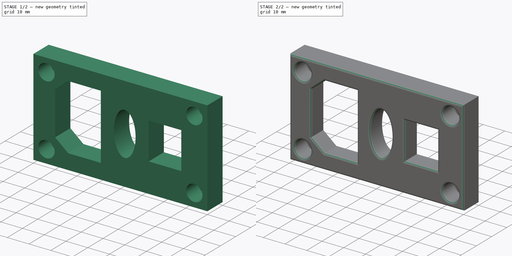
[diagram: build sequence overview — one tinted view per stage of 2, left to right]
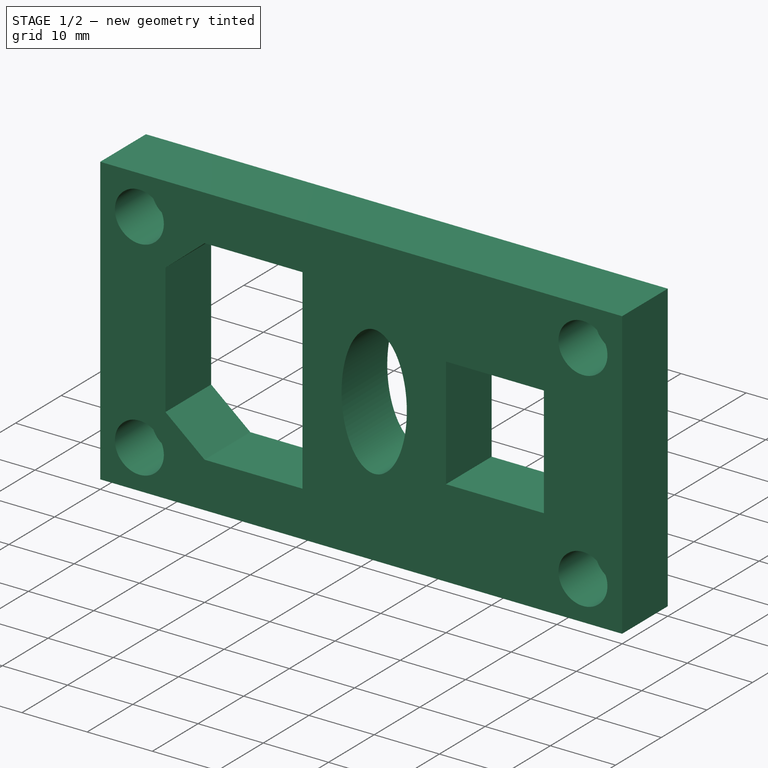
[diagram: stage 1 of 2 — iso view after this stage's code; geometry added in this stage tinted green]
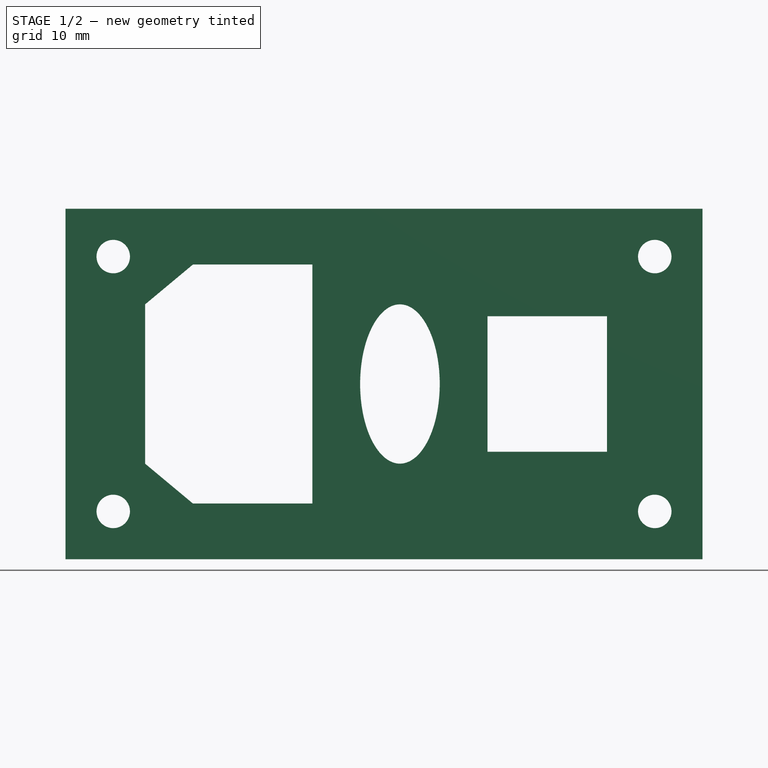
[diagram: stage 1 of 2 — front view after this stage's code; geometry added in this stage tinted green]
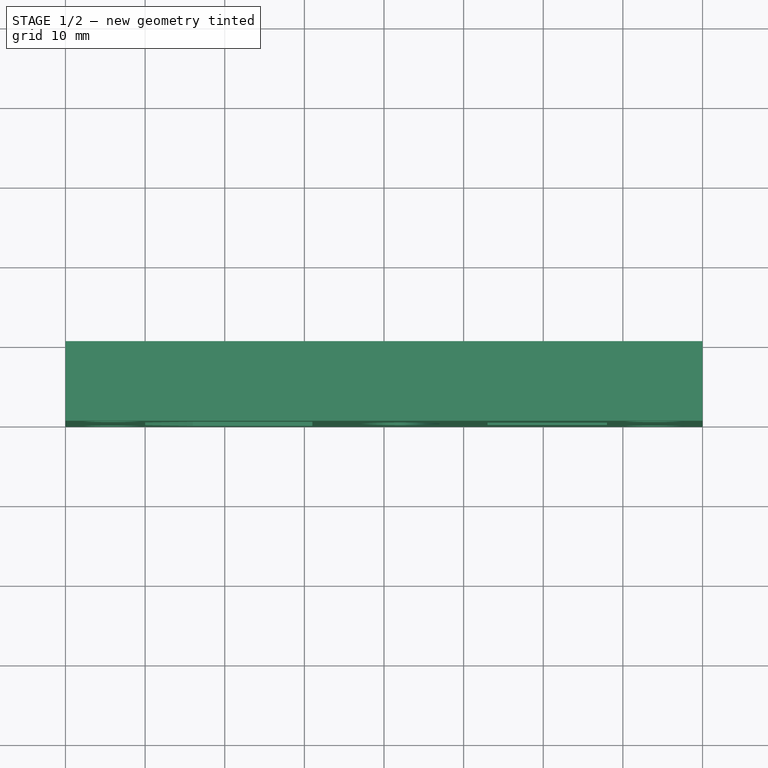
[diagram: stage 1 of 2 — top view after this stage's code; geometry added in this stage tinted green]
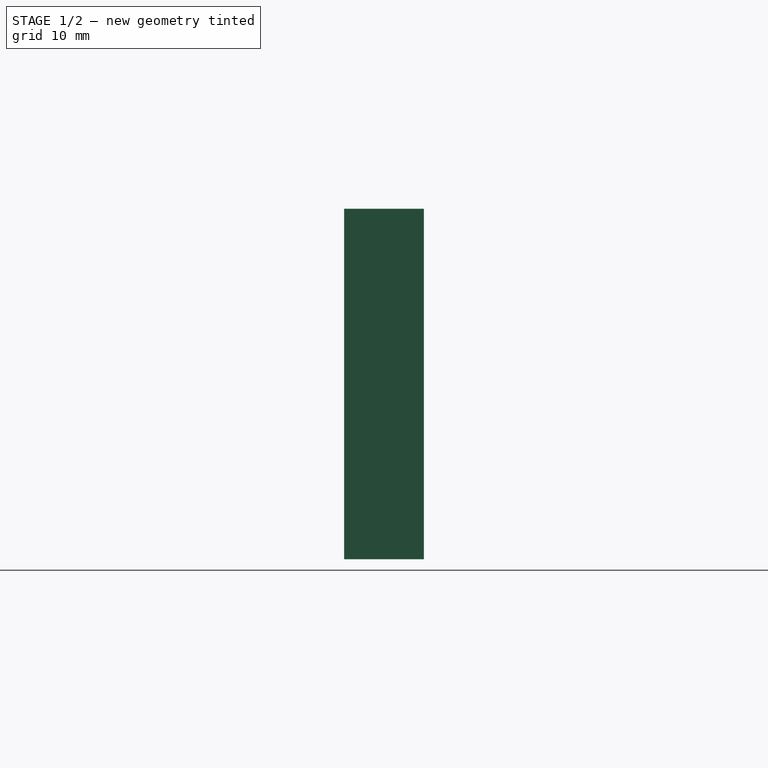
[diagram: stage 1 of 2 — right view after this stage's code; geometry added in this stage tinted green]
FCSTD DOCUMENT  (FreeCAD 2023.521R14555 (Git shallow))
Label: Back_IO
License: All rights reserved
LicenseURL: https://en.wikipedia.org/wiki/All_rights_reserved
objects: Sketcher::SketchObject×2, PartDesign::Pad×1, PartDesign::Pocket×1, PartDesign::Fillet×1, PartDesign::Chamfer×1, PartDesign::Body×1
note: 17 computed .brp shape members not serialized (recipe doc carries the construction recipe); baked Part::Feature solids carry a one-line shape summary decoded from their .brp

FEATURE [Sketcher::SketchObject] Sketch
  ArcFitTolerance = 1e-06
  AttachmentSupport = -> [XZ_Plane]
  ExternalBSplineMaxDegree = 5
  ExternalBSplineTolerance = 0.0001
  FixShape = 1
  FullyConstrained = true
  InternalTolerance = 1e-06
  InvalidShape = false
  MakeInternals = false
  MapMode = 5
  Placement = pos=(0,0,0) rot=(1,0,0;1.5708rad)
  Support = -> [XZ_Plane]
  TreeRank = 11
  ValidateShape = false
  sketch-geometry (32):
    g0: LineSegment StartX=-40 StartY=-22 StartZ=0 EndX=-40 EndY=22 EndZ=0
    g1: LineSegment StartX=-40 StartY=22 StartZ=0 EndX=40 EndY=22 EndZ=0
    g2: LineSegment StartX=40 StartY=22 StartZ=0 EndX=40 EndY=-22 EndZ=0
    g3: LineSegment StartX=40 StartY=-22 StartZ=0 EndX=-40 EndY=-22 EndZ=0
    g4: GeomPoint [constr] X=0 Y=0 Z=0
    g5: Circle CenterX=-34 CenterY=16 CenterZ=0 NormalX=0 NormalY=0 NormalZ=1 AngleXU=0 Radius=2.1
    g6: Circle CenterX=-34 CenterY=-16 CenterZ=0 NormalX=0 NormalY=0 NormalZ=1 AngleXU=0 Radius=2.1
    g7: Circle CenterX=34 CenterY=16 CenterZ=0 NormalX=0 NormalY=0 NormalZ=1 AngleXU=0 Radius=2.1
    g8: Circle CenterX=34 CenterY=-16 CenterZ=0 NormalX=0 NormalY=0 NormalZ=1 AngleXU=0 Radius=2.1
    g9: LineSegment [constr] StartX=-34 StartY=-16 StartZ=0 EndX=-34 EndY=16 EndZ=0
    g10: LineSegment [constr] StartX=-34 StartY=16 StartZ=0 EndX=34 EndY=16 EndZ=0
    g11: LineSegment [constr] StartX=34 StartY=16 StartZ=0 EndX=34 EndY=-16 EndZ=0
    g12: LineSegment [constr] StartX=34 StartY=-16 StartZ=0 EndX=-34 EndY=-16 EndZ=0
    g13: GeomPoint [constr] X=0 Y=0 Z=0
    g14: LineSegment [constr] StartX=-34 StartY=16 StartZ=0 EndX=-40 EndY=16 EndZ=0
    g15: LineSegment [constr] StartX=-34 StartY=16 StartZ=0 EndX=-34 EndY=22 EndZ=0
    g16: LineSegment StartX=-30 StartY=10 StartZ=0 EndX=-30 EndY=-10 EndZ=0
    g17: LineSegment StartX=-30 StartY=-10 StartZ=0 EndX=-24 EndY=-15 EndZ=0
    g18: LineSegment StartX=-24 StartY=-15 StartZ=0 EndX=-9 EndY=-15 EndZ=0
    g19: LineSegment StartX=-9 StartY=-15 StartZ=0 EndX=-9 EndY=15 EndZ=0
    g20: LineSegment StartX=-9 StartY=15 StartZ=0 EndX=-24 EndY=15 EndZ=0
    g21: LineSegment StartX=-24 StartY=15 StartZ=0 EndX=-30 EndY=10 EndZ=0
    g22: Ellipse CenterX=2 CenterY=0 CenterZ=0 NormalX=0 NormalY=0 NormalZ=1 MajorRadius=10 MinorRadius=5 AngleXU=1.5708
    g23: LineSegment [constr] StartX=2 StartY=10 StartZ=0 EndX=2 EndY=-10 EndZ=0
    g24: LineSegment [constr] StartX=-3 StartY=0 StartZ=0 EndX=7 EndY=0 EndZ=0
    g25: GeomPoint [constr] X=2 Y=8.66025 Z=0
    g26: GeomPoint [constr] X=2 Y=-8.66025 Z=0
    g27: LineSegment StartX=13 StartY=-8.5 StartZ=0 EndX=13 EndY=8.5 EndZ=0
    g28: LineSegment StartX=13 StartY=8.5 StartZ=0 EndX=28 EndY=8.5 EndZ=0
    g29: LineSegment StartX=28 StartY=8.5 StartZ=0 EndX=28 EndY=-8.5 EndZ=0
    g30: LineSegment StartX=28 StartY=-8.5 StartZ=0 EndX=13 EndY=-8.5 EndZ=0
    g31: GeomPoint [constr] X=20.5 Y=0 Z=0
  constraints (74):
    c: Coincident(g0,g1)
    c: Coincident(g1,g2)
    c: Coincident(g2,g3)
    c: Coincident(g3,g0)
    c: Horizontal(g1)
    c: Horizontal(g3)
    c: Vertical(g0)
    c: Vertical(g2)
    c: Symmetric(g1,g0,g4)
    c: Coincident(g4,g-1)
    c: Coincident(g9,g10)
    c: Coincident(g10,g11)
    c: Coincident(g11,g12)
    c: Coincident(g12,g9)
    c: Horizontal(g10)
    c: Horizontal(g12)
    c: Vertical(g9)
    c: Vertical(g11)
    c: Symmetric(g10,g9,g13)
    c: Coincident(g13,g4)
    c: Coincident(g10,g7)
    c: Coincident(g11,g8)
    c: Coincident(g5,g9)
    c: Coincident(g6,g9)
    c: DistanceY(g9,g9) = 32
    c: DistanceY(g0,g0) = 44
    c: Diameter(g5) = 4.2
    c: Equal(g5,g6)
    c: Equal(g6,g7)
    c: Equal(g7,g8)
    c: Coincident(g14,g5)
    c: PointOnObject(g14,g0)
    c: Horizontal(g14)
    c: Coincident(g15,g5)
    c: PointOnObject(g15,g1)
    c: Vertical(g15)
    c: Equal(g15,g14)
    c: Vertical(g16)
    c: Coincident(g16,g17)
    c: Coincident(g17,g18)
    c: Horizontal(g18)
    c: Coincident(g18,g19)
    c: Coincident(g19,g20)
    c: Coincident(g20,g21)
    c: Coincident(g21,g16)
    c: Horizontal(g20)
    c: Equal(g18,g20)
    c: Equal(g21,g17)
    c: Symmetric(g18,g19,g-1)
    c: DistanceX(g16,g18) = 21
    c: DistanceY(g19,g19) = 30
    c: DistanceX(g16,g20) = 6
    c: DistanceY(g16,g16) = 20
    c: DistanceX(g5,g16) = 4
    c: InternalAlignment(g23-g26 -> g22) x4
    c: PointOnObject(g22,g-1)
    c: DistanceX(g6,g22) = 36
    c: Vertical(g23)
    c: DistanceY(g23,g23) = 20
    c: DistanceX(g24,g24) = 10
    c: Coincident(g27,g28)
    c: Coincident(g28,g29)
    c: Coincident(g29,g30)
    c: Coincident(g30,g27)
    c: Horizontal(g28)
    c: Horizontal(g30)
    c: Vertical(g27)
    c: Vertical(g29)
    c: Symmetric(g28,g27,g31)
    c: PointOnObject(g31,g-1)
    c: DistanceX(g28,g28) = 15
    c: DistanceY(g29,g29) = 17
    c: DistanceX(g5,g28) = 62
    c: DistanceX(g10,g10) = 68
FEATURE [PartDesign::Pad] Pad
  AddSubType = 0
  AlongSketchNormal = false
  AutoTaperInnerAngle = true
  CheckUpToFaceLimits = true
  ClaimChildren = false
  Direction = (0,-1,2e-16)
  Fit = 0
  FitJoin = 0
  FixShape = 1
  InnerFit = 0
  InnerFitJoin = 0
  InvalidShape = false
  Length = 10
  Length2 = 10
  Linearize = true
  NewSolid = false
  Profile = -> Sketch
  ReferenceAxis = -> Sketch [N_Axis]
  Refine = true
  Suppress = false
  TaperInnerAngle = 0
  TaperInnerAngleRev = 0
  TreeRank = 12
  Type = 0
  ValidateShape = true
  _ProfileBasedVersion = 1
FEATURE [Sketcher::SketchObject] Sketch001
  ArcFitTolerance = 1e-06
  AttachmentSupport = -> [Pad]
  ExternalBSplineMaxDegree = 5
  ExternalBSplineTolerance = 0.0001
  ExternalGeometry = -> [Pad]
  FixShape = 1
  FullyConstrained = true
  InternalTolerance = 1e-06
  InvalidShape = false
  MakeInternals = false
  MapMode = 5
  Placement = pos=(0,-10,2.2e-15) rot=(1,0,0;1.5708rad)
  Support = -> [Pad]
  TreeRank = 13
  ValidateShape = false
  sketch-geometry (4):
    g0: Circle CenterX=-34 CenterY=16 CenterZ=0 NormalX=0 NormalY=0 NormalZ=1 AngleXU=0 Radius=3.75
    g1: Circle CenterX=-34 CenterY=-16 CenterZ=0 NormalX=0 NormalY=0 NormalZ=1 AngleXU=0 Radius=3.75
    g2: Circle CenterX=34 CenterY=-16 CenterZ=0 NormalX=0 NormalY=0 NormalZ=1 AngleXU=0 Radius=3.75
    g3: Circle CenterX=34 CenterY=16 CenterZ=0 NormalX=0 NormalY=0 NormalZ=1 AngleXU=0 Radius=3.75
  constraints (8):
    c: Coincident(g0,g-3)
    c: Coincident(g1,g-5)
    c: Coincident(g2,g-6)
    c: Coincident(g3,g-4)
    c: Equal(g2,g3)
    c: Equal(g3,g0)
    c: Equal(g0,g1)
    c: Diameter(g0) = 7.5
FEATURE [PartDesign::Pocket] Pocket
  AddSubType = 1
  AlongSketchNormal = false
  AutoTaperInnerAngle = true
  BaseFeature = -> Pad
  CheckUpToFaceLimits = true
  ClaimChildren = false
  Direction = (0,1,-2e-16)
  Fit = 0
  FitJoin = 0
  FixShape = 1
  InnerFit = 0
  InnerFitJoin = 0
  InvalidShape = false
  Length = 8
  Length2 = 10
  Linearize = true
  NewSolid = false
  Profile = -> Sketch001
  ReferenceAxis = -> Sketch001 [N_Axis]
  Refine = true
  Suppress = false
  TaperInnerAngle = 0
  TaperInnerAngleRev = 0
  TreeRank = 14
  Type = 0
  ValidateShape = true
  _ProfileBasedVersion = 1
  _Version = 1
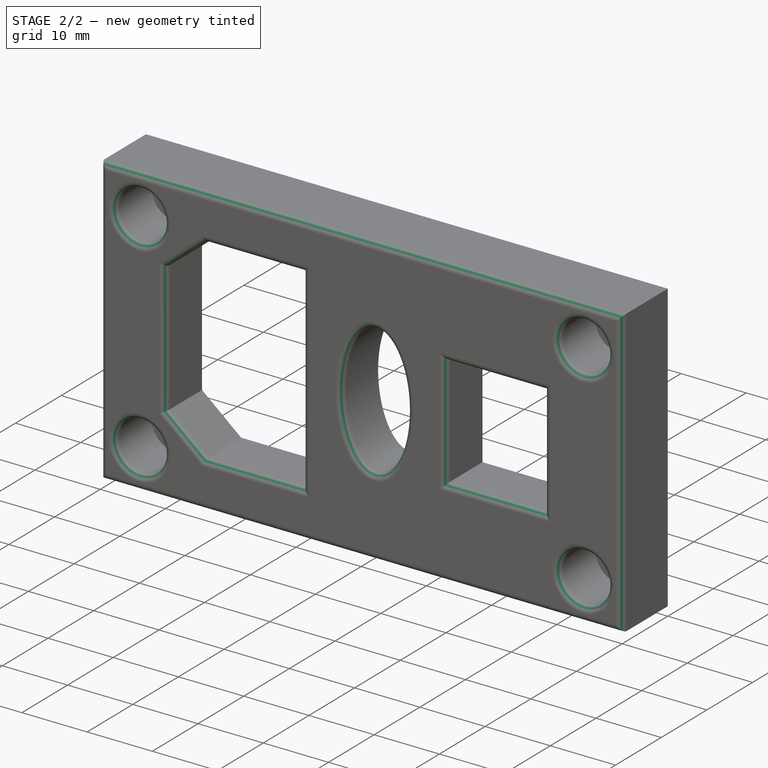
[diagram: stage 2 of 2 — iso view after this stage's code; geometry added in this stage tinted green]
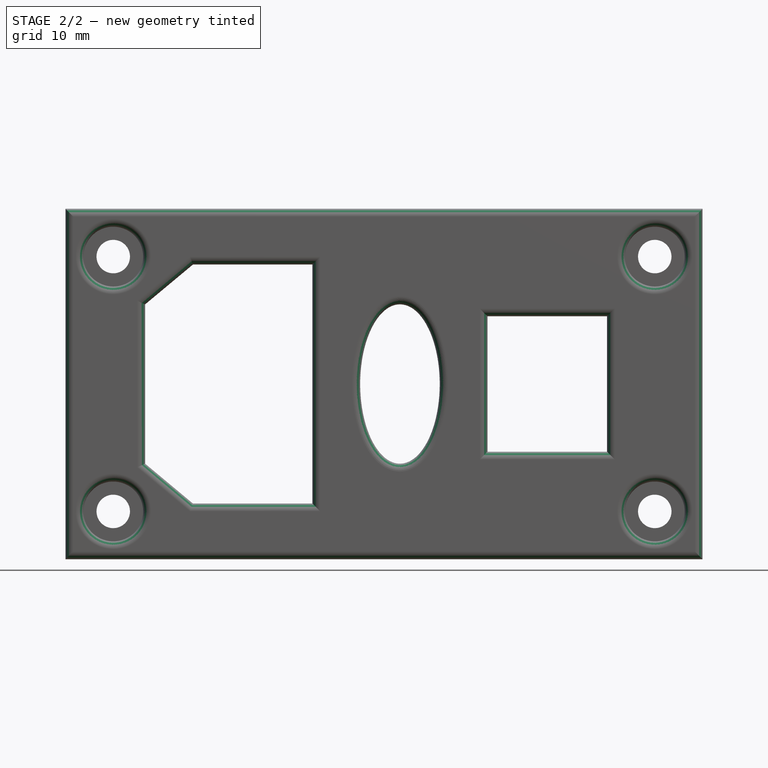
[diagram: stage 2 of 2 — front view after this stage's code; geometry added in this stage tinted green]
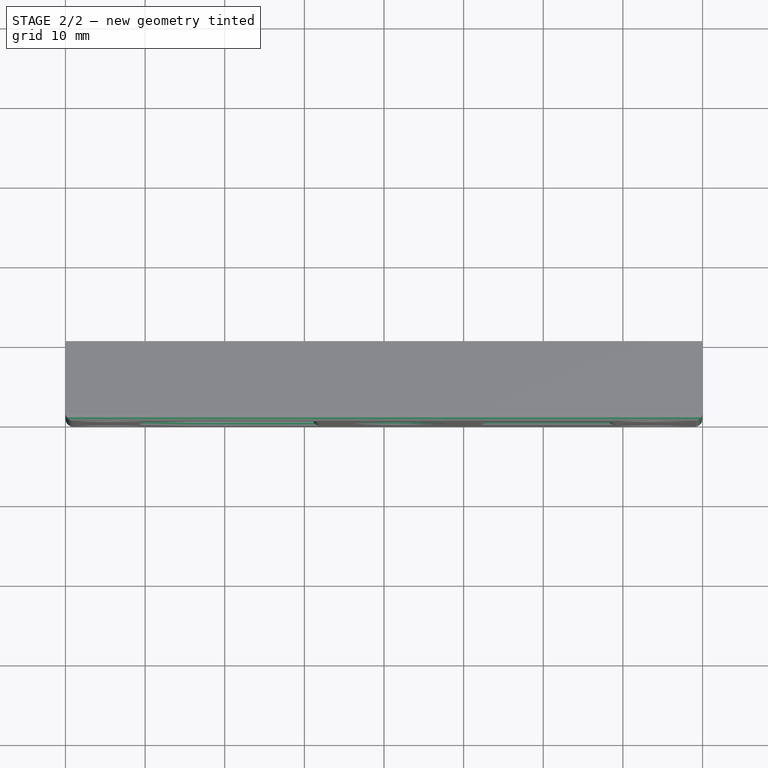
[diagram: stage 2 of 2 — top view after this stage's code; geometry added in this stage tinted green]
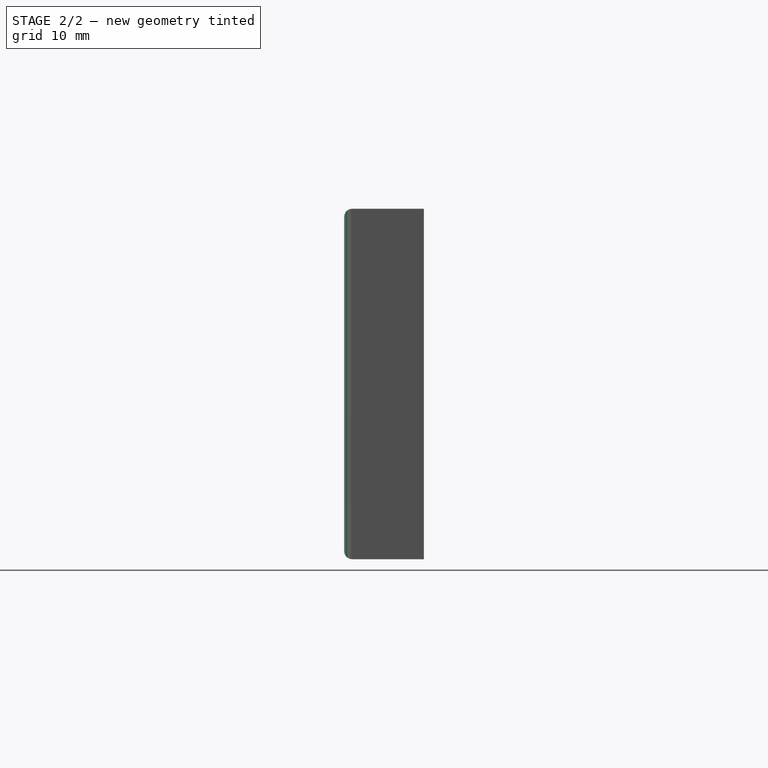
[diagram: stage 2 of 2 — right view after this stage's code; geometry added in this stage tinted green]
FEATURE [PartDesign::Fillet] Fillet
  AddSubType = 0
  Base = -> Pocket [Face5]
  BaseFeature = -> Pocket
  FixShape = 1
  InvalidShape = false
  NewSolid = false
  Radius = 1
  Refine = true
  SupportTransform = false
  Suppress = false
  TreeRank = 15
  UseAllEdges = false
  ValidateShape = true
FEATURE [PartDesign::Chamfer] Chamfer
  AddSubType = 0
  Angle = 45
  Base = -> Fillet [Edge13,Edge14,Edge15,Edge18,Edge17,Edge16,Edge23,Edge19,Edge20,Edge22,Edge21]
  BaseFeature = -> Fillet
  ChamferType = 0
  FixShape = 1
  FlipDirection = false
  InvalidShape = false
  NewSolid = false
  Refine = true
  Size = 2
  Size2 = 1
  SupportTransform = false
  Suppress = false
  TreeRank = 16
  UseAllEdges = false
  ValidateShape = true
FEATURE [PartDesign::Body] Body
  AutoGroupSolids = false
  ClaimAllChildren = false
  ExportMode = 0
  FixShape = 1
  Group = -> [Sketch,Pad,Sketch001,Pocket,Fillet,Chamfer]
  InvalidShape = false
  Origin = -> Origin
  Tip = -> Chamfer
  TreeRank = 10
  ValidateShape = false
  _ExportChildren = -> [Pad,Pocket,Fillet,Chamfer]
  _GroupVersion = 1
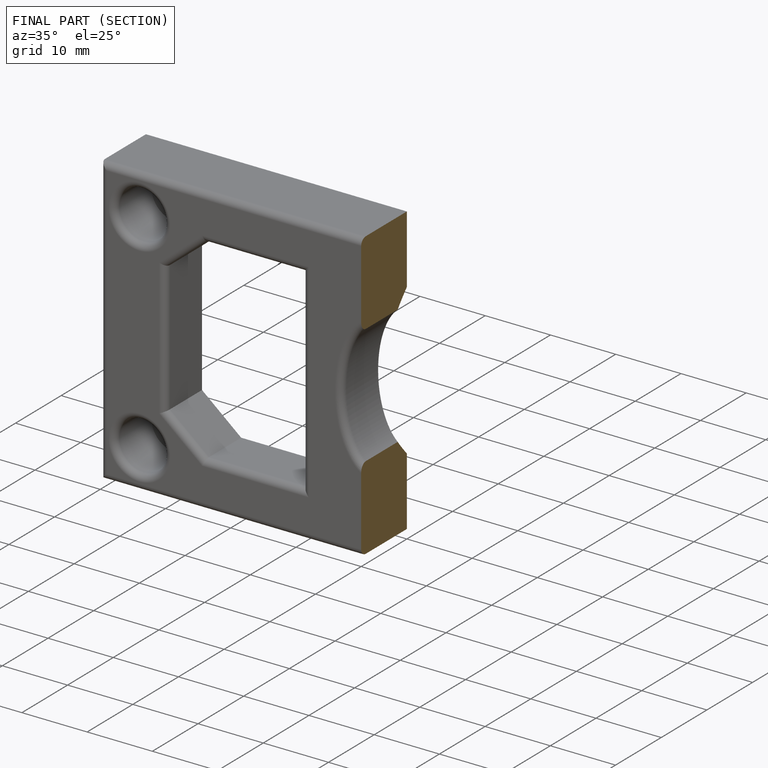
[diagram: finished part — half-section view (interior)]
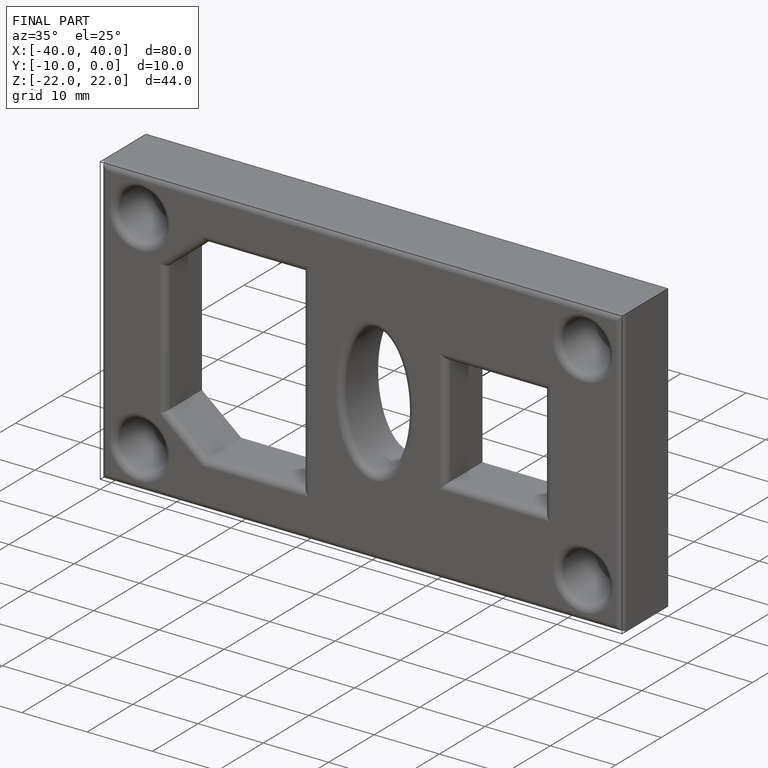
[diagram: finished part — iso view with bounding-box wireframe]
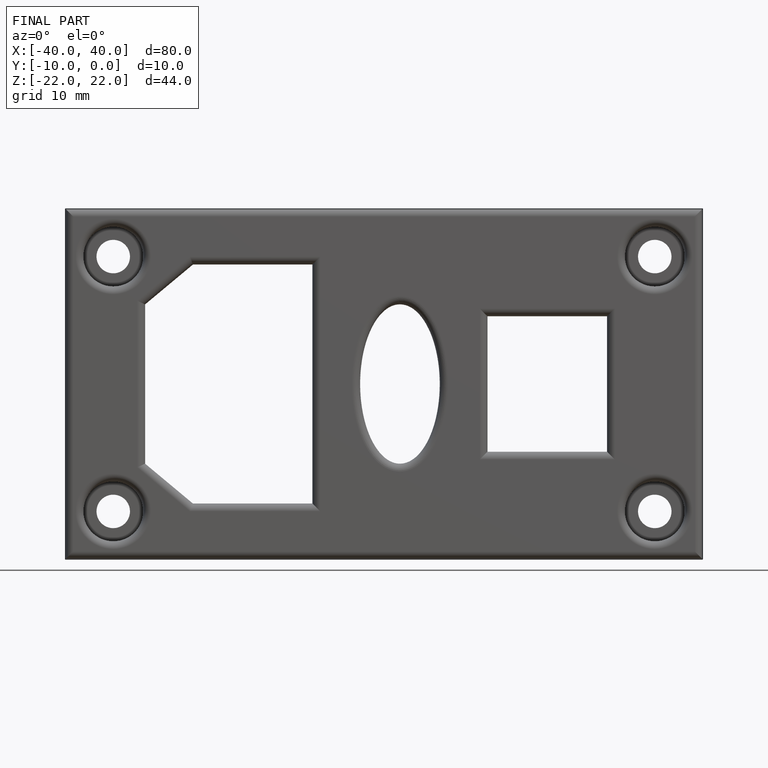
[diagram: finished part — front view with bounding-box wireframe]
